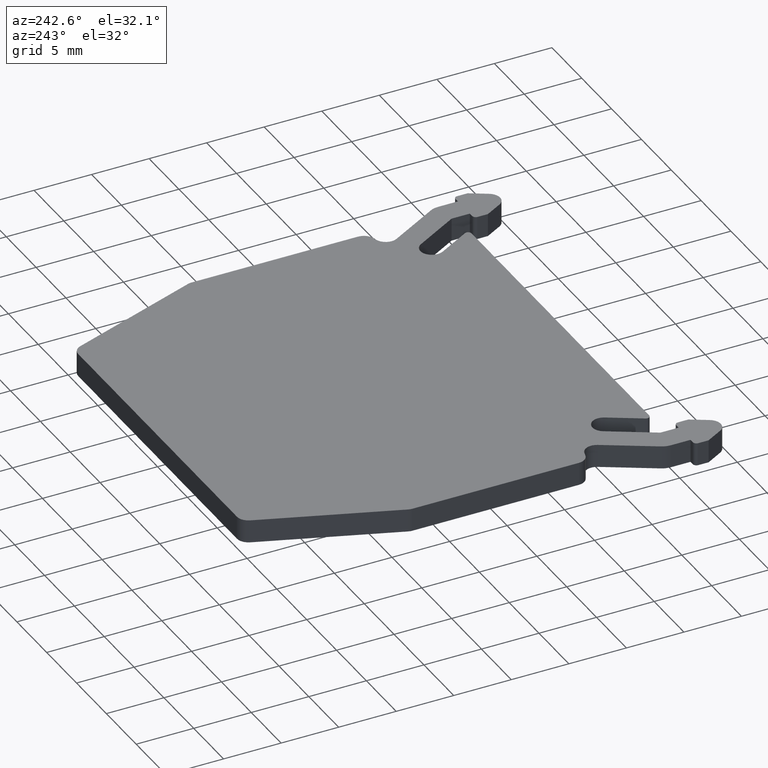
[diagram: clean part render]
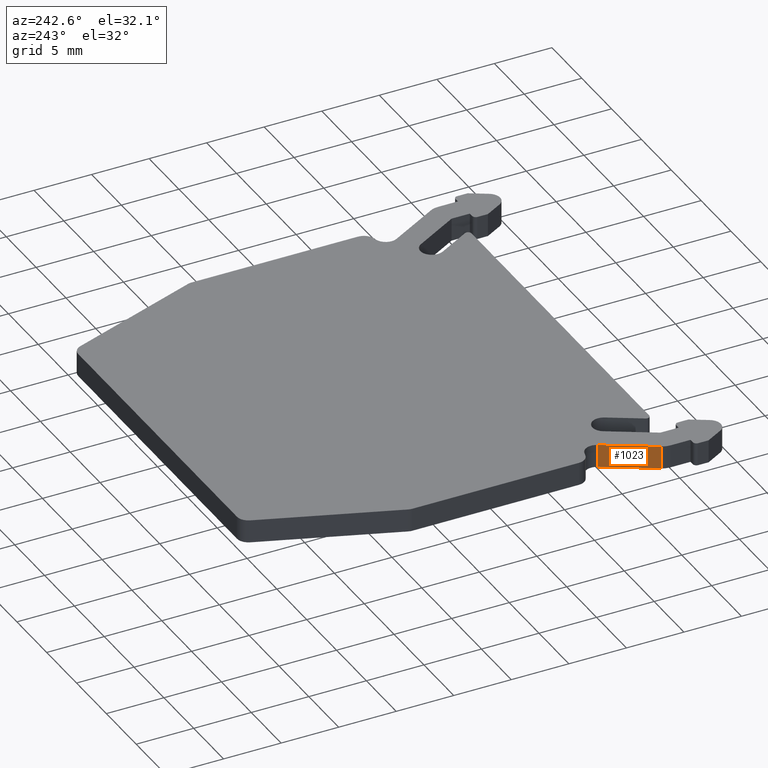
[diagram: same view with one face highlighted and labeled with its STEP entity id]
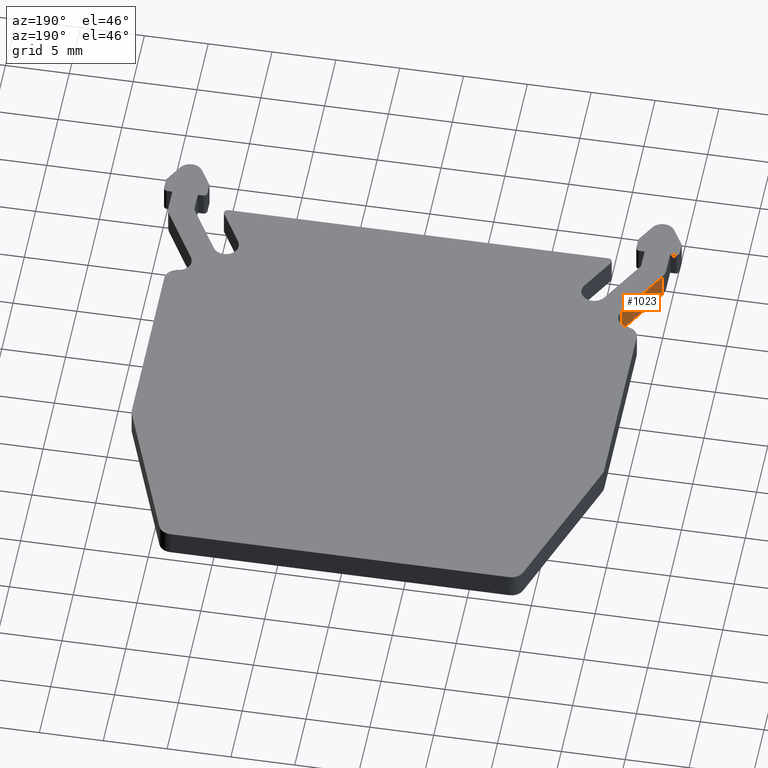
[diagram: same view with one face highlighted and labeled with its STEP entity id]
A machine part, auxiliary view. The second image highlights one B-rep face of the part: STEP entity #1023.
A second angle (auxiliary view) of the same face is appended — the face is thin or edge-on in the first view.
In plain terms, the highlighted planar face has unit normal (-0.866, 0.5, 0).
Its self-contained STEP definition (entity closure, byte-faithful):
#41=PLANE('',#1113);
#89=FACE_OUTER_BOUND('',#141,.T.);
#141=EDGE_LOOP('',(#875,#876,#877,#878));
#216=LINE('',#1611,#326);
#247=LINE('',#1690,#357);
#248=LINE('',#1693,#358);
#249=LINE('',#1694,#359);
#326=VECTOR('',#1298,4.88897274573418);
#357=VECTOR('',#1381,2.);
#358=VECTOR('',#1384,4.88897274573418);
#359=VECTOR('',#1385,2.);
#479=VERTEX_POINT('',#1608);
#480=VERTEX_POINT('',#1610);
#502=VERTEX_POINT('',#1688);
#503=VERTEX_POINT('',#1692);
#603=EDGE_CURVE('',#480,#479,#216,.T.);
#643=EDGE_CURVE('',#479,#502,#247,.T.);
#644=EDGE_CURVE('',#502,#503,#248,.T.);
#645=EDGE_CURVE('',#480,#503,#249,.T.);
#875=ORIENTED_EDGE('',*,*,#644,.T.);
#876=ORIENTED_EDGE('',*,*,#645,.F.);
#877=ORIENTED_EDGE('',*,*,#603,.T.);
#878=ORIENTED_EDGE('',*,*,#643,.T.);
#1023=ADVANCED_FACE('',(#89),#41,.T.);
#1113=AXIS2_PLACEMENT_3D('',#1691,#1382,#1383);
#1298=DIRECTION('',(-0.499999999999999,-0.866025403784439,0.));
#1381=DIRECTION('',(0.,0.,1.));
#1382=DIRECTION('center_axis',(-0.866025403784439,0.499999999999999,0.));
#1383=DIRECTION('ref_axis',(0.,0.,1.));
#1384=DIRECTION('',(0.499999999999999,0.866025403784439,0.));
#1385=DIRECTION('',(0.,0.,1.));
#1608=CARTESIAN_POINT('',(-19.2940381056767,1.26602540378444,-1.));
#1610=CARTESIAN_POINT('',(-16.8495517328096,5.5,-1.));
#1611=CARTESIAN_POINT('',(-16.8495517328096,5.5,-1.));
#1688=CARTESIAN_POINT('',(-19.2940381056767,1.26602540378444,1.));
#1690=CARTESIAN_POINT('',(-19.2940381056767,1.26602540378444,0.));
#1691=CARTESIAN_POINT('Origin',(-19.2940381056767,1.26602540378444,0.));
#1692=CARTESIAN_POINT('',(-16.8495517328096,5.5,1.));
#1693=CARTESIAN_POINT('',(-16.8495517328096,5.5,1.));
#1694=CARTESIAN_POINT('',(-16.8495517328096,5.5,0.));